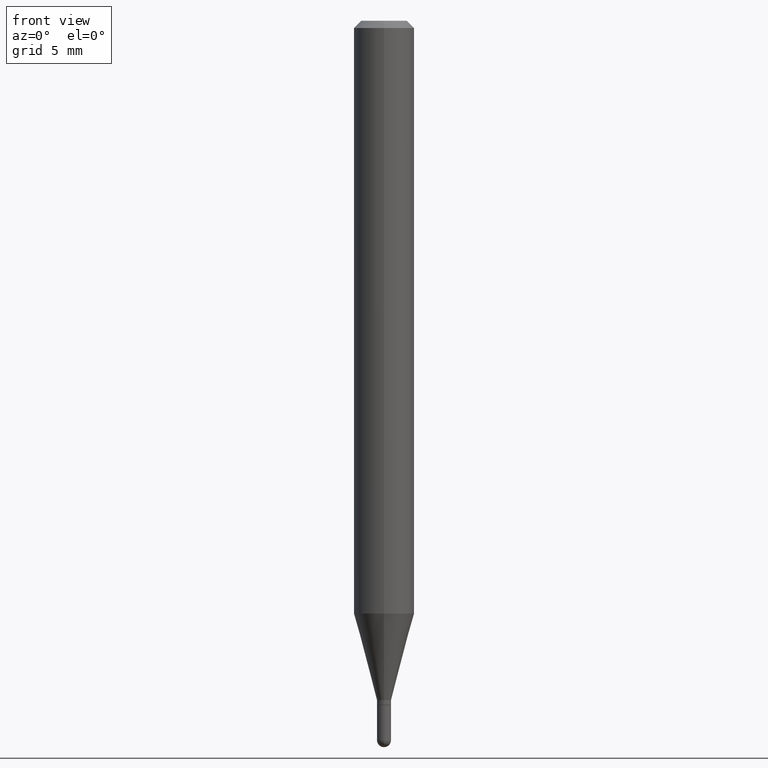
[diagram: clean part render]
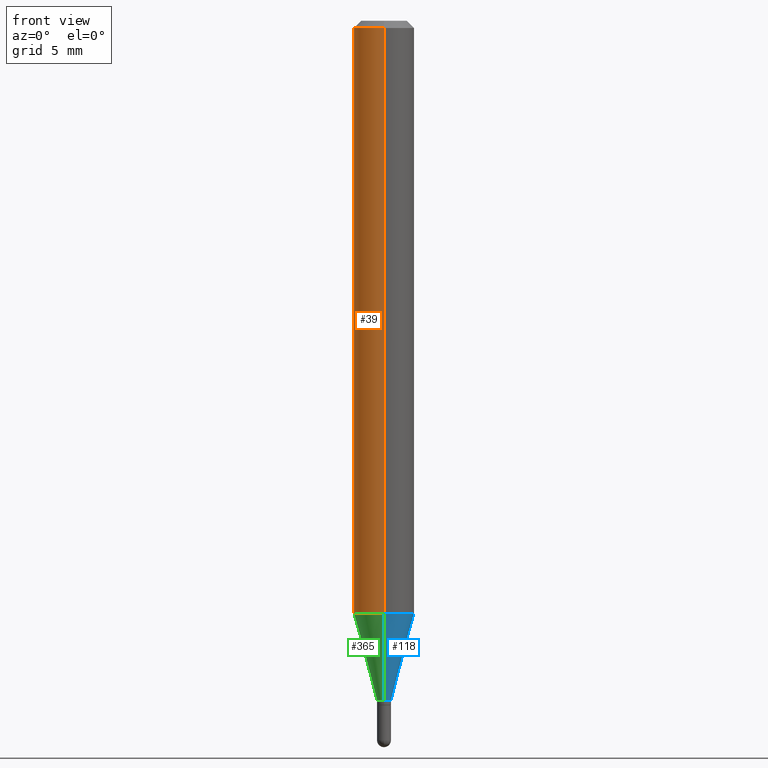
[diagram: same view with three faces highlighted in distinct colors, each labeled with its STEP entity id]
A machine part, front view with three faces highlighted in distinct colors.
Their STEP definitions:

[orange] entity #39 — the highlighted cylindrical surface (edge-blend (fillet) strip) has radius 1.5875 mm, axis along (-0, 0, 1).
#3 = LINE ( 'NONE', #252, #338 ) ;
#39 = ADVANCED_FACE ( 'NONE', ( #353 ), #502, .T. ) ;
#45 = CARTESIAN_POINT ( 'NONE',  ( 4.440892098500922971E-16, 0.06249999999999571176, -1.223861561236694762 ) ) ;
#61 = CIRCLE ( 'NONE', #111, 0.06250000000000000000 ) ;
#63 = ORIENTED_EDGE ( 'NONE', *, *, #511, .F. ) ;
#92 = AXIS2_PLACEMENT_3D ( 'NONE', #401, #432, #280 ) ;
#111 = AXIS2_PLACEMENT_3D ( 'NONE', #132, #376, #512 ) ;
#129 = DIRECTION ( 'NONE',  ( -2.445461630549588864E-29, 3.491491614761661816E-15, 1.000000000000000000 ) ) ;
#132 = CARTESIAN_POINT ( 'NONE',  ( 2.992906489108852516E-29, -4.273102378687034425E-15, -1.223861561236694540 ) ) ;
#159 = VERTEX_POINT ( 'NONE', #341 ) ;
#160 = DIRECTION ( 'NONE',  ( -2.445461630549588864E-29, 3.491491614761661816E-15, 1.000000000000000000 ) ) ;
#176 = DIRECTION ( 'NONE',  ( -6.982962677686265922E-15, -1.000000000000000000, 3.491491614761661422E-15 ) ) ;
#187 = EDGE_LOOP ( 'NONE', ( #63, #501, #379, #340 ) ) ;
#196 = CARTESIAN_POINT ( 'NONE',  ( -4.364351673553912750E-16, -0.06250000000000005551, -0.01499999999999979128 ) ) ;
#201 = CARTESIAN_POINT ( 'NONE',  ( -4.364351673553617913E-16, -0.06250000000000427436, -1.223861561236694095 ) ) ;
#215 = CIRCLE ( 'NONE', #92, 0.06250000000000000000 ) ;
#220 = VERTEX_POINT ( 'NONE', #45 ) ;
#229 = DIRECTION ( 'NONE',  ( -2.445461630549588864E-29, 3.491491614761661422E-15, 1.000000000000000000 ) ) ;
#232 = AXIS2_PLACEMENT_3D ( 'NONE', #246, #229, #176 ) ;
#245 = VERTEX_POINT ( 'NONE', #201 ) ;
#246 = CARTESIAN_POINT ( 'NONE',  ( 0.000000000000000000, 0.000000000000000000, 0.000000000000000000 ) ) ;
#252 = CARTESIAN_POINT ( 'NONE',  ( 4.440892098500625669E-16, 0.06250000000000000000, -2.182182259226038389E-16 ) ) ;
#280 = DIRECTION ( 'NONE',  ( -6.982962677686265922E-15, -1.000000000000000000, 3.483106191921935554E-15 ) ) ;
#335 = VERTEX_POINT ( 'NONE', #196 ) ;
#338 = VECTOR ( 'NONE', #129, 39.37007874015748143 ) ;
#340 = ORIENTED_EDGE ( 'NONE', *, *, #367, .F. ) ;
#341 = CARTESIAN_POINT ( 'NONE',  ( 4.440892098500927901E-16, 0.06249999999999995837, -0.01500000000000022669 ) ) ;
#353 = FACE_OUTER_BOUND ( 'NONE', #187, .T. ) ;
#354 = EDGE_CURVE ( 'NONE', #245, #335, #510, .T. ) ;
#358 = CARTESIAN_POINT ( 'NONE',  ( -4.364351673553916201E-16, -0.06250000000000000000, 2.182182259226038389E-16 ) ) ;
#367 = EDGE_CURVE ( 'NONE', #159, #335, #215, .T. ) ;
#368 = VECTOR ( 'NONE', #160, 39.37007874015748143 ) ;
#376 = DIRECTION ( 'NONE',  ( -2.445461630549588864E-29, 3.491491614761661422E-15, 1.000000000000000000 ) ) ;
#379 = ORIENTED_EDGE ( 'NONE', *, *, #354, .T. ) ;
#401 = CARTESIAN_POINT ( 'NONE',  ( 3.668192445824385714E-31, -5.237237422142495831E-17, -0.01500000000000000812 ) ) ;
#420 = EDGE_CURVE ( 'NONE', #220, #245, #61, .T. ) ;
#432 = DIRECTION ( 'NONE',  ( -2.445461630549588864E-29, 3.491491614761661422E-15, 1.000000000000000000 ) ) ;
#501 = ORIENTED_EDGE ( 'NONE', *, *, #420, .T. ) ;
#502 = CYLINDRICAL_SURFACE ( 'NONE', #232, 0.06250000000000000000 ) ;
#510 = LINE ( 'NONE', #358, #368 ) ;
#511 = EDGE_CURVE ( 'NONE', #220, #159, #3, .T. ) ;
#512 = DIRECTION ( 'NONE',  ( -6.982962677686265922E-15, -1.000000000000000000, 4.370956789862821150E-15 ) ) ;

[blue] entity #118 — the highlighted conical surface has half-angle 15 deg.
#9 = CONICAL_SURFACE ( 'NONE', #351, 0.01449999999999992441, 0.2617993877991505181 ) ;
#20 = VERTEX_POINT ( 'NONE', #33 ) ;
#33 = CARTESIAN_POINT ( 'NONE',  ( 2.735589532676705169E-16, 0.01449999999999502555, -1.403000000000000025 ) ) ;
#45 = CARTESIAN_POINT ( 'NONE',  ( 4.440892098500922971E-16, 0.06249999999999571176, -1.223861561236694762 ) ) ;
#52 = EDGE_CURVE ( 'NONE', #245, #220, #109, .T. ) ;
#53 = CARTESIAN_POINT ( 'NONE',  ( 1.030286966852482683E-16, 0.01449999999999502555, -1.403000000000000025 ) ) ;
#83 = DIRECTION ( 'NONE',  ( -2.445461630549588864E-29, 3.491491614761661422E-15, 1.000000000000000000 ) ) ;
#90 = ORIENTED_EDGE ( 'NONE', *, *, #52, .F. ) ;
#97 = CARTESIAN_POINT ( 'NONE',  ( 3.430982667661073565E-29, -4.898562735510612277E-15, -1.403000000000000025 ) ) ;
#105 = ORIENTED_EDGE ( 'NONE', *, *, #357, .F. ) ;
#109 = CIRCLE ( 'NONE', #498, 0.06250000000000000000 ) ;
#118 = ADVANCED_FACE ( 'NONE', ( #484 ), #9, .T. ) ;
#133 = DIRECTION ( 'NONE',  ( 1.839019923739601893E-15, 0.2588190451025252359, 0.9659258262890670910 ) ) ;
#158 = DIRECTION ( 'NONE',  ( -1.807323732225331717E-15, -0.2588190451025184080, 0.9659258262890689783 ) ) ;
#168 = CIRCLE ( 'NONE', #258, 0.01449999999999992441 ) ;
#201 = CARTESIAN_POINT ( 'NONE',  ( -4.364351673553617913E-16, -0.06250000000000427436, -1.223861561236694095 ) ) ;
#206 = CARTESIAN_POINT ( 'NONE',  ( 2.992906489108852516E-29, -4.273102378687034425E-15, -1.223861561236694540 ) ) ;
#212 = ORIENTED_EDGE ( 'NONE', *, *, #453, .T. ) ;
#220 = VERTEX_POINT ( 'NONE', #45 ) ;
#245 = VERTEX_POINT ( 'NONE', #201 ) ;
#258 = AXIS2_PLACEMENT_3D ( 'NONE', #504, #83, #313 ) ;
#263 = EDGE_CURVE ( 'NONE', #314, #20, #168, .T. ) ;
#270 = VECTOR ( 'NONE', #133, 39.37007874015748854 ) ;
#295 = DIRECTION ( 'NONE',  ( -6.982962677686265922E-15, -1.000000000000000000, 0.000000000000000000 ) ) ;
#313 = DIRECTION ( 'NONE',  ( -6.982962677686265922E-15, -1.000000000000000000, 0.000000000000000000 ) ) ;
#314 = VERTEX_POINT ( 'NONE', #398 ) ;
#330 = LINE ( 'NONE', #53, #270 ) ;
#342 = EDGE_LOOP ( 'NONE', ( #408, #212, #90, #105 ) ) ;
#351 = AXIS2_PLACEMENT_3D ( 'NONE', #97, #415, #295 ) ;
#357 = EDGE_CURVE ( 'NONE', #314, #245, #400, .T. ) ;
#370 = DIRECTION ( 'NONE',  ( -6.982962677686265922E-15, -1.000000000000000000, 4.370956789862821150E-15 ) ) ;
#398 = CARTESIAN_POINT ( 'NONE',  ( -1.012529588264160223E-16, -0.01450000000000482153, -1.403000000000000025 ) ) ;
#400 = LINE ( 'NONE', #503, #430 ) ;
#408 = ORIENTED_EDGE ( 'NONE', *, *, #263, .T. ) ;
#415 = DIRECTION ( 'NONE',  ( -2.445461630549588864E-29, 3.491491614761661422E-15, 1.000000000000000000 ) ) ;
#430 = VECTOR ( 'NONE', #158, 39.37007874015748854 ) ;
#448 = DIRECTION ( 'NONE',  ( -2.445461630549588864E-29, 3.491491614761661422E-15, 1.000000000000000000 ) ) ;
#453 = EDGE_CURVE ( 'NONE', #20, #220, #330, .T. ) ;
#484 = FACE_OUTER_BOUND ( 'NONE', #342, .T. ) ;
#498 = AXIS2_PLACEMENT_3D ( 'NONE', #206, #448, #370 ) ;
#503 = CARTESIAN_POINT ( 'NONE',  ( -1.012529588264160223E-16, -0.01450000000000482153, -1.403000000000000025 ) ) ;
#504 = CARTESIAN_POINT ( 'NONE',  ( 3.430982667661073565E-29, -4.898562735510612277E-15, -1.403000000000000025 ) ) ;

[green] entity #365 — the highlighted conical surface has half-angle 15 deg.
#2 = AXIS2_PLACEMENT_3D ( 'NONE', #317, #277, #476 ) ;
#20 = VERTEX_POINT ( 'NONE', #33 ) ;
#33 = CARTESIAN_POINT ( 'NONE',  ( 2.735589532676705169E-16, 0.01449999999999502555, -1.403000000000000025 ) ) ;
#38 = CARTESIAN_POINT ( 'NONE',  ( 3.430982667661073565E-29, -4.898562735510612277E-15, -1.403000000000000025 ) ) ;
#45 = CARTESIAN_POINT ( 'NONE',  ( 4.440892098500922971E-16, 0.06249999999999571176, -1.223861561236694762 ) ) ;
#53 = CARTESIAN_POINT ( 'NONE',  ( 1.030286966852482683E-16, 0.01449999999999502555, -1.403000000000000025 ) ) ;
#61 = CIRCLE ( 'NONE', #111, 0.06250000000000000000 ) ;
#81 = ORIENTED_EDGE ( 'NONE', *, *, #375, .T. ) ;
#104 = ORIENTED_EDGE ( 'NONE', *, *, #453, .F. ) ;
#111 = AXIS2_PLACEMENT_3D ( 'NONE', #132, #376, #512 ) ;
#115 = DIRECTION ( 'NONE',  ( -6.982962677686265922E-15, -1.000000000000000000, 0.000000000000000000 ) ) ;
#132 = CARTESIAN_POINT ( 'NONE',  ( 2.992906489108852516E-29, -4.273102378687034425E-15, -1.223861561236694540 ) ) ;
#133 = DIRECTION ( 'NONE',  ( 1.839019923739601893E-15, 0.2588190451025252359, 0.9659258262890670910 ) ) ;
#144 = CONICAL_SURFACE ( 'NONE', #2, 0.01449999999999992441, 0.2617993877991505181 ) ;
#158 = DIRECTION ( 'NONE',  ( -1.807323732225331717E-15, -0.2588190451025184080, 0.9659258262890689783 ) ) ;
#177 = CIRCLE ( 'NONE', #499, 0.01449999999999992441 ) ;
#201 = CARTESIAN_POINT ( 'NONE',  ( -4.364351673553617913E-16, -0.06250000000000427436, -1.223861561236694095 ) ) ;
#220 = VERTEX_POINT ( 'NONE', #45 ) ;
#239 = FACE_OUTER_BOUND ( 'NONE', #251, .T. ) ;
#242 = DIRECTION ( 'NONE',  ( -2.445461630549588864E-29, 3.491491614761661422E-15, 1.000000000000000000 ) ) ;
#245 = VERTEX_POINT ( 'NONE', #201 ) ;
#251 = EDGE_LOOP ( 'NONE', ( #104, #81, #294, #362 ) ) ;
#270 = VECTOR ( 'NONE', #133, 39.37007874015748854 ) ;
#277 = DIRECTION ( 'NONE',  ( -2.445461630549588864E-29, 3.491491614761661422E-15, 1.000000000000000000 ) ) ;
#294 = ORIENTED_EDGE ( 'NONE', *, *, #357, .T. ) ;
#314 = VERTEX_POINT ( 'NONE', #398 ) ;
#317 = CARTESIAN_POINT ( 'NONE',  ( 3.430982667661073565E-29, -4.898562735510612277E-15, -1.403000000000000025 ) ) ;
#330 = LINE ( 'NONE', #53, #270 ) ;
#357 = EDGE_CURVE ( 'NONE', #314, #245, #400, .T. ) ;
#362 = ORIENTED_EDGE ( 'NONE', *, *, #420, .F. ) ;
#365 = ADVANCED_FACE ( 'NONE', ( #239 ), #144, .T. ) ;
#375 = EDGE_CURVE ( 'NONE', #20, #314, #177, .T. ) ;
#376 = DIRECTION ( 'NONE',  ( -2.445461630549588864E-29, 3.491491614761661422E-15, 1.000000000000000000 ) ) ;
#398 = CARTESIAN_POINT ( 'NONE',  ( -1.012529588264160223E-16, -0.01450000000000482153, -1.403000000000000025 ) ) ;
#400 = LINE ( 'NONE', #503, #430 ) ;
#420 = EDGE_CURVE ( 'NONE', #220, #245, #61, .T. ) ;
#430 = VECTOR ( 'NONE', #158, 39.37007874015748854 ) ;
#453 = EDGE_CURVE ( 'NONE', #20, #220, #330, .T. ) ;
#476 = DIRECTION ( 'NONE',  ( -6.982962677686265922E-15, -1.000000000000000000, 0.000000000000000000 ) ) ;
#499 = AXIS2_PLACEMENT_3D ( 'NONE', #38, #242, #115 ) ;
#503 = CARTESIAN_POINT ( 'NONE',  ( -1.012529588264160223E-16, -0.01450000000000482153, -1.403000000000000025 ) ) ;
#512 = DIRECTION ( 'NONE',  ( -6.982962677686265922E-15, -1.000000000000000000, 4.370956789862821150E-15 ) ) ;